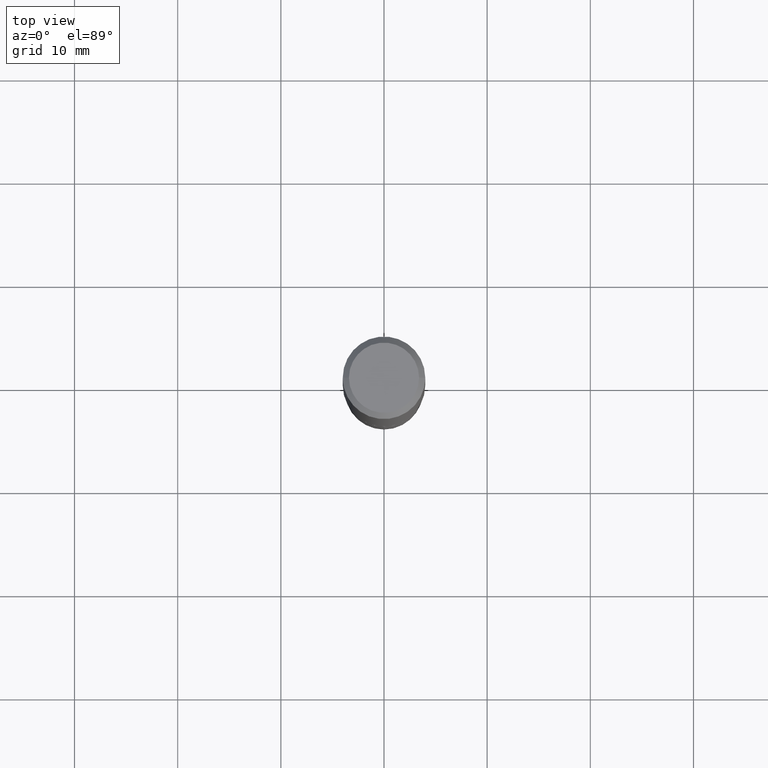
[diagram: clean part render]
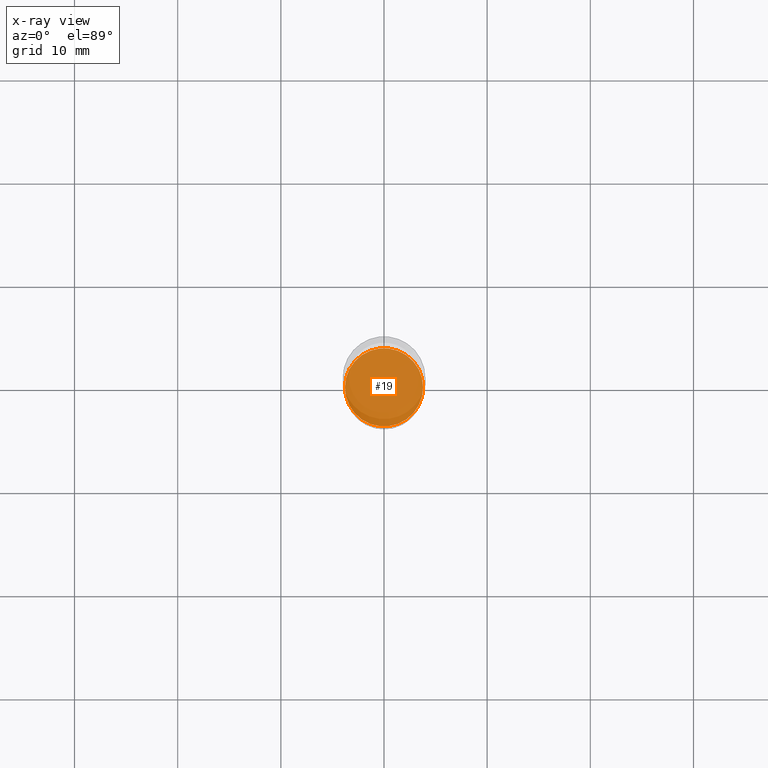
[diagram: x-ray — body ghosted, one internal face saturated and labeled with its STEP entity id]
A machine part, top view, then the same camera in x-ray: the body is ghosted and one INTERNAL B-rep face — a face not visible from any outside direction — is saturated and labeled: STEP entity #19.
In plain terms, the highlighted planar face has unit normal (-0, 0, 1).
Its self-contained STEP definition (entity closure, byte-faithful):
#1 = AXIS2_PLACEMENT_3D ( 'NONE', #248, #313, #391 ) ;
#19 = ADVANCED_FACE ( 'NONE', ( #129 ), #281, .F. ) ;
#20 = VERTEX_POINT ( 'NONE', #323 ) ;
#29 = DIRECTION ( 'NONE',  ( -2.445468806185136597E-29, 3.491481338843145583E-15, 1.000000000000000000 ) ) ;
#51 = EDGE_LOOP ( 'NONE', ( #294, #299 ) ) ;
#81 = DIRECTION ( 'NONE',  ( 1.000000000000000000, -6.982962677686265133E-15, 0.000000000000000000 ) ) ;
#106 = CARTESIAN_POINT ( 'NONE',  ( -0.1491000000000000103, -6.360471732054222467E-15, -2.125899999999999679 ) ) ;
#117 = EDGE_CURVE ( 'NONE', #20, #118, #420, .T. ) ;
#118 = VERTEX_POINT ( 'NONE', #106 ) ;
#129 = FACE_OUTER_BOUND ( 'NONE', #51, .T. ) ;
#143 = DIRECTION ( 'NONE',  ( 1.000000000000000000, -6.982962677686265133E-15, 0.000000000000000000 ) ) ;
#213 = AXIS2_PLACEMENT_3D ( 'NONE', #292, #29, #81 ) ;
#248 = CARTESIAN_POINT ( 'NONE',  ( 5.198822135068982087E-29, -7.422540178246643119E-15, -2.125899999999999679 ) ) ;
#281 = PLANE ( 'NONE',  #1 ) ;
#292 = CARTESIAN_POINT ( 'NONE',  ( 5.198822135068982087E-29, -7.422540178246643119E-15, -2.125899999999999679 ) ) ;
#293 = AXIS2_PLACEMENT_3D ( 'NONE', #358, #441, #143 ) ;
#294 = ORIENTED_EDGE ( 'NONE', *, *, #117, .F. ) ;
#299 = ORIENTED_EDGE ( 'NONE', *, *, #378, .F. ) ;
#305 = CIRCLE ( 'NONE', #293, 0.1491000000000000103 ) ;
#313 = DIRECTION ( 'NONE',  ( -2.438088387897960049E-29, 3.491481338843145188E-15, 1.000000000000000000 ) ) ;
#323 = CARTESIAN_POINT ( 'NONE',  ( 0.1491000000000000103, -8.463699913489664135E-15, -2.125899999999999679 ) ) ;
#358 = CARTESIAN_POINT ( 'NONE',  ( 5.198822135068982087E-29, -7.422540178246643119E-15, -2.125899999999999679 ) ) ;
#378 = EDGE_CURVE ( 'NONE', #118, #20, #305, .T. ) ;
#391 = DIRECTION ( 'NONE',  ( 1.000000000000000000, -6.982962677686265922E-15, 4.876176775795935793E-29 ) ) ;
#420 = CIRCLE ( 'NONE', #213, 0.1491000000000000103 ) ;
#441 = DIRECTION ( 'NONE',  ( -2.445468806185136597E-29, 3.491481338843145583E-15, 1.000000000000000000 ) ) ;